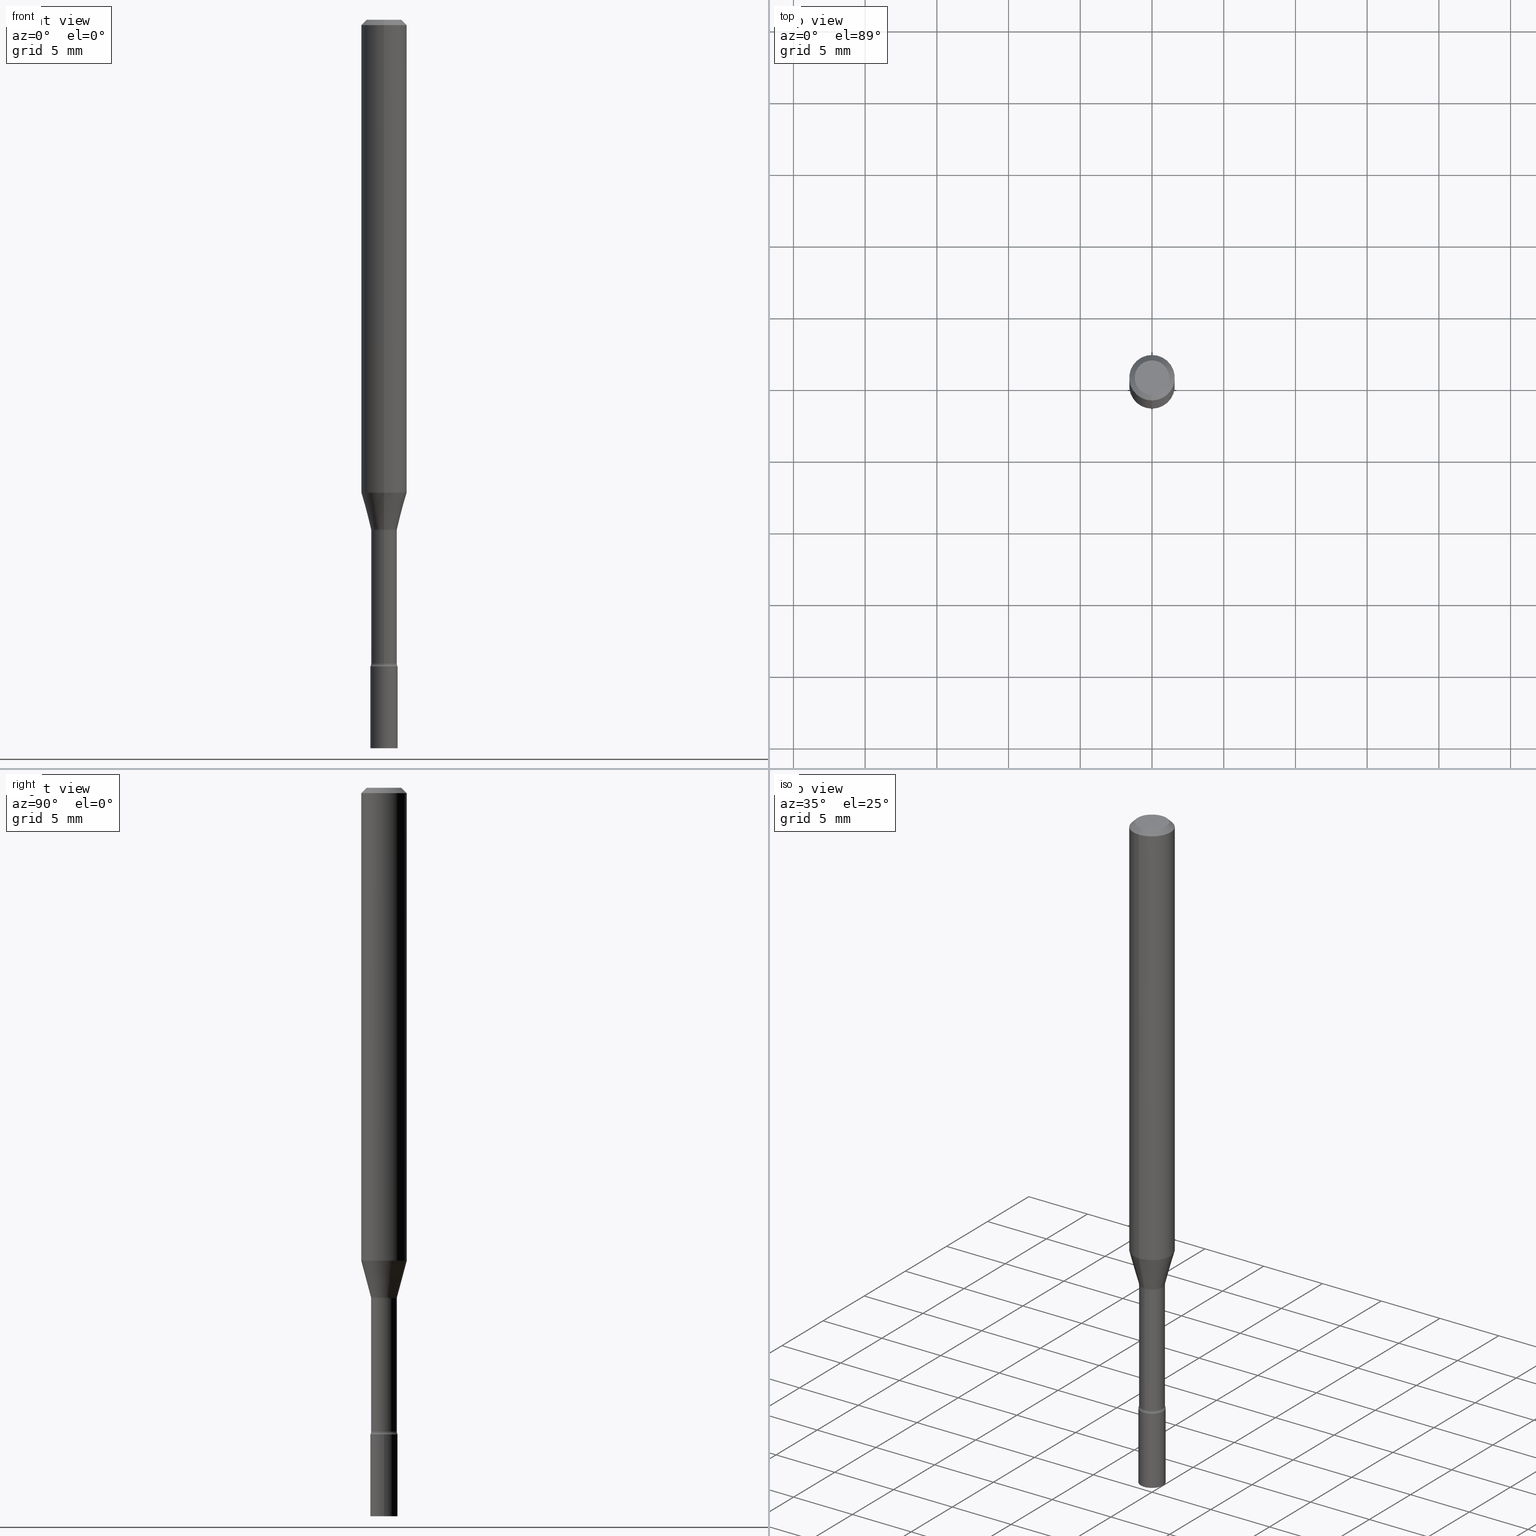
[diagram: canonical four-view strip — front | top / right | iso, engineering-drawing reading convention]
A machine part, canonical four-view strip (front | top / right | iso — engineering-drawing reading convention). The complete STEP part file that produces these views, byte-faithful:
ISO-10303-21;
HEADER;
FILE_DESCRIPTION (( 'STEP AP203' ),
    '1' );
FILE_NAME ('09871.STEP',
    '2024-03-09T02:35:27',
    ( '' ),
    ( '' ),
    'SwSTEP 2.0',
    'SolidWorks 2023',
    '' );
FILE_SCHEMA (( 'CONFIG_CONTROL_DESIGN' ));
ENDSEC;

DATA;
#1 = VERTEX_POINT ( 'NONE', #246 ) ;
#2 = FACE_OUTER_BOUND ( 'NONE', #465, .T. ) ;
#3 = CARTESIAN_POINT ( 'NONE',  ( 3.418998576260185238E-29, -4.881403891401201649E-15, -1.398092501787273179 ) ) ;
#4 = DIRECTION ( 'NONE',  ( -2.445473795109734051E-29, 3.491474194419170735E-15, 1.000000000000000000 ) ) ;
#5 = CONICAL_SURFACE ( 'NONE', #257, 0.03576111260566397498, 0.2617993877991499629 ) ;
#6 = CARTESIAN_POINT ( 'NONE',  ( 2.540979878465689744E-16, 0.03576111260565909000, -1.398092501787273179 ) ) ;
#7 = ORIENTED_EDGE ( 'NONE', *, *, #299, .F. ) ;
#8 = DIRECTION ( 'NONE',  ( 7.105427357601001859E-15, 1.000000000000000000, 0.000000000000000000 ) ) ;
#9 = ADVANCED_FACE ( 'NONE', ( #407 ), #403, .T. ) ;
#10 = CARTESIAN_POINT ( 'NONE',  ( -2.618611004131915157E-16, -0.03750000000000618811, -1.775000000000000133 ) ) ;
#11 = ORIENTED_EDGE ( 'NONE', *, *, #380, .F. ) ;
#12 = LENGTH_MEASURE_WITH_UNIT ( LENGTH_MEASURE( 0.02539999999999999897 ), #45 );
#13 = CONICAL_SURFACE ( 'NONE', #248, 0.03576111260566397498, 0.2617993877991499629 ) ;
#14 = CIRCLE ( 'NONE', #72, 0.06250000000000000000 ) ;
#15 = CARTESIAN_POINT ( 'NONE',  ( 4.340707130978617347E-29, -6.197379376446583794E-15, -1.775000000000000133 ) ) ;
#16 = CARTESIAN_POINT ( 'NONE',  ( -2.497185146378532009E-16, -0.03576111260566885303, -1.398092501787273179 ) ) ;
#17 = ORIENTED_EDGE ( 'NONE', *, *, #236, .F. ) ;
#18 = ORIENTED_EDGE ( 'NONE', *, *, #167, .F. ) ;
#19 = EDGE_LOOP ( 'NONE', ( #264, #256, #379, #330 ) ) ;
#20 = APPROVAL_STATUS ( 'not_yet_approved' ) ;
#21 = CIRCLE ( 'NONE', #119, 0.01499999999999997689 ) ;
#22 = CONICAL_SURFACE ( 'NONE', #344, 0.06250000000000000000, 0.7853981633974483900 ) ;
#23 = AXIS2_PLACEMENT_3D ( 'NONE', #215, #105, #326 ) ;
#24 = VERTEX_POINT ( 'NONE', #200 ) ;
#25 = DIRECTION ( 'NONE',  ( -2.445473795109733770E-29, 3.491474194419170341E-15, 1.000000000000000000 ) ) ;
#26 = ORIENTED_EDGE ( 'NONE', *, *, #336, .T. ) ;
#27 = CALENDAR_DATE ( 2024, 8, 3 ) ;
#28 = PLANE ( 'NONE',  #165 ) ;
#29 = ORIENTED_EDGE ( 'NONE', *, *, #77, .T. ) ;
#30 = CYLINDRICAL_SURFACE ( 'NONE', #141, 0.03525000000000003825 ) ;
#31 = DIRECTION ( 'NONE',  ( -6.982962677686266711E-15, -1.000000000000000000, 3.491474194419170735E-15 ) ) ;
#32 = CARTESIAN_POINT ( 'NONE',  ( 3.428485609800787057E-29, -4.894968807958481776E-15, -1.401974787463811101 ) ) ;
#33 = VECTOR ( 'NONE', #402, 39.37007874015748143 ) ;
#34 = VERTEX_POINT ( 'NONE', #287 ) ;
#35 = AXIS2_PLACEMENT_3D ( 'NONE', #55, #210, #367 ) ;
#36 = CARTESIAN_POINT ( 'NONE',  ( -0.03749999999999999861, 2.664535259100375598E-16, -1.844600658845589458E-30 ) ) ;
#37 = DATE_AND_TIME ( #394, #223 ) ;
#38 = CC_DESIGN_PERSON_AND_ORGANIZATION_ASSIGNMENT ( #487, #130, ( #166 ) ) ;
#39 = AXIS2_PLACEMENT_3D ( 'NONE', #472, #242, #142 ) ;
#40 = CIRCLE ( 'NONE', #391, 0.03749999999999999861 ) ;
#41 = PLANE ( 'NONE',  #222 ) ;
#42 = DESIGN_CONTEXT ( 'detailed design', #328, 'design' ) ;
#43 = EDGE_CURVE ( 'NONE', #1, #64, #154, .T. ) ;
#44 = CC_DESIGN_PERSON_AND_ORGANIZATION_ASSIGNMENT ( #80, #263, ( #346 ) ) ;
#45 =( LENGTH_UNIT ( ) NAMED_UNIT ( * ) SI_UNIT ( $, .METRE. ) );
#46 = CARTESIAN_POINT ( 'NONE',  ( 3.428485609800787057E-29, -4.894968807958481776E-15, -1.401974787463811101 ) ) ;
#47 = DIRECTION ( 'NONE',  ( -2.445473795109733770E-29, 3.491474194419170341E-15, 1.000000000000000000 ) ) ;
#48 = AXIS2_PLACEMENT_3D ( 'NONE', #175, #504, #301 ) ;
#49 = FACE_OUTER_BOUND ( 'NONE', #171, .T. ) ;
#50 = CLOSED_SHELL ( 'NONE', ( #440, #497, #170, #284, #150, #266, #251, #9, #156, #267, #227, #396, #258, #280 ) ) ;
#51 = DIRECTION ( 'NONE',  ( -6.982962677686265922E-15, -1.000000000000000000, 4.370956789862821150E-15 ) ) ;
#52 = ORIENTED_EDGE ( 'NONE', *, *, #167, .T. ) ;
#53 = DIRECTION ( 'NONE',  ( -6.982962677686265922E-15, -1.000000000000000000, 0.000000000000000000 ) ) ;
#54 = DIRECTION ( 'NONE',  ( 1.839019923739597949E-15, 0.2588190451025246253, 0.9659258262890670910 ) ) ;
#55 = CARTESIAN_POINT ( 'NONE',  ( 4.321383671524591751E-29, -6.169790597593636121E-15, -1.767098259685360606 ) ) ;
#56 = DIRECTION ( 'NONE',  ( -6.982962677686266711E-15, -1.000000000000000000, 0.000000000000000000 ) ) ;
#57 = CALENDAR_DATE ( 2024, 8, 3 ) ;
#58 = TOROIDAL_SURFACE ( 'NONE', #35, 0.05025000000000006545, 0.01499999999999997689 ) ;
#59 = ORIENTED_EDGE ( 'NONE', *, *, #355, .T. ) ;
#60 = ORIENTED_EDGE ( 'NONE', *, *, #113, .T. ) ;
#61 =( NAMED_UNIT ( * ) PLANE_ANGLE_UNIT ( ) SI_UNIT ( $, .RADIAN. ) );
#62 = ORIENTED_EDGE ( 'NONE', *, *, #450, .T. ) ;
#63 = VECTOR ( 'NONE', #108, 39.37007874015748143 ) ;
#64 = VERTEX_POINT ( 'NONE', #317 ) ;
#65 = PERSON_AND_ORGANIZATION_ROLE ( 'creator' ) ;
#66 = EDGE_CURVE ( 'NONE', #324, #515, #518, .T. ) ;
#67 = DIRECTION ( 'NONE',  ( -6.982962677686266711E-15, -1.000000000000000000, 0.000000000000000000 ) ) ;
#68 = VERTEX_POINT ( 'NONE', #480 ) ;
#69 = ADVANCED_BREP_SHAPE_REPRESENTATION ( '09871', ( #412, #419, #446 ), #489 ) ;
#70 = DIRECTION ( 'NONE',  ( -2.445473795109733770E-29, 3.491474194419170341E-15, 1.000000000000000000 ) ) ;
#71 = AXIS2_PLACEMENT_3D ( 'NONE', #441, #193, #183 ) ;
#72 = AXIS2_PLACEMENT_3D ( 'NONE', #452, #135, #319 ) ;
#73 = CALENDAR_DATE ( 2024, 8, 3 ) ;
#74 = EDGE_CURVE ( 'NONE', #1, #68, #362, .T. ) ;
#75 = FACE_OUTER_BOUND ( 'NONE', #493, .T. ) ;
#76 = CARTESIAN_POINT ( 'NONE',  ( 4.340715986319777674E-29, -6.197366695094028046E-15, -1.775000000000000133 ) ) ;
#77 = EDGE_CURVE ( 'NONE', #34, #324, #252, .T. ) ;
#78 = AXIS2_PLACEMENT_3D ( 'NONE', #225, #25, #296 ) ;
#79 = DIRECTION ( 'NONE',  ( -2.445473795109733770E-29, 3.491474194419170341E-15, 1.000000000000000000 ) ) ;
#80 = PERSON_AND_ORGANIZATION ( #318, #371 ) ;
#81 = APPROVAL_DATE_TIME ( #282, #311 ) ;
#82 = ORIENTED_EDGE ( 'NONE', *, *, #295, .F. ) ;
#83 = CIRCLE ( 'NONE', #78, 0.03576111260566397498 ) ;
#84 = DIRECTION ( 'NONE',  ( -2.445473795109733770E-29, 3.491474194419170341E-15, 1.000000000000000000 ) ) ;
#85 = LOCAL_TIME ( 21, 35, 27.00000000000000000, #415 ) ;
#86 = DIRECTION ( 'NONE',  ( -6.982962677686265922E-15, -1.000000000000000000, 3.491474194419170341E-15 ) ) ;
#87 = ORIENTED_EDGE ( 'NONE', *, *, #355, .F. ) ;
#88 = DIRECTION ( 'NONE',  ( 1.000000000000000000, 0.000000000000000000, 0.000000000000000000 ) ) ;
#89 = FACE_OUTER_BOUND ( 'NONE', #185, .T. ) ;
#90 = DIRECTION ( 'NONE',  ( 1.000000000000000000, -6.982962677686265922E-15, 4.876176775795935793E-29 ) ) ;
#91 = PERSON_AND_ORGANIZATION_ROLE ( 'design_owner' ) ;
#92 = ADVANCED_FACE ( 'NONE', ( #125 ), #158, .T. ) ;
#93 = VERTEX_POINT ( 'NONE', #208 ) ;
#94 = VECTOR ( 'NONE', #220, 39.37007874015748143 ) ;
#95 = VECTOR ( 'NONE', #4, 39.37007874015748143 ) ;
#96 = CLOSED_SHELL ( 'NONE', ( #354, #92, #209, #349 ) ) ;
#97 = ORIENTED_EDGE ( 'NONE', *, *, #191, .F. ) ;
#98 = APPLICATION_PROTOCOL_DEFINITION ( 'international standard', 'config_control_design', 1994, #328 ) ;
#99 = EDGE_LOOP ( 'NONE', ( #206, #418, #460, #510 ) ) ;
#100 = EDGE_CURVE ( 'NONE', #501, #363, #353, .T. ) ;
#101 = LINE ( 'NONE', #126, #63 ) ;
#102 = ORIENTED_EDGE ( 'NONE', *, *, #155, .T. ) ;
#103 = AXIS2_PLACEMENT_3D ( 'NONE', #507, #274, #187 ) ;
#104 = CC_DESIGN_APPROVAL ( #311, ( #166 ) ) ;
#105 = DIRECTION ( 'NONE',  ( -2.445473795109733770E-29, 3.491474194419170341E-15, 1.000000000000000000 ) ) ;
#106 = CYLINDRICAL_SURFACE ( 'NONE', #133, 0.06250000000000000000 ) ;
#107 = ORIENTED_EDGE ( 'NONE', *, *, #136, .T. ) ;
#108 = DIRECTION ( 'NONE',  ( -2.445473795109734051E-29, 3.491474194419170735E-15, 1.000000000000000000 ) ) ;
#109 = CARTESIAN_POINT ( 'NONE',  ( -0.03749999999999999861, -6.323717501156401251E-15, -2.000000000000000000 ) ) ;
#110 = ORIENTED_EDGE ( 'NONE', *, *, #454, .T. ) ;
#111 = CARTESIAN_POINT ( 'NONE',  ( 4.321383671524591751E-29, -6.169790597593636121E-15, -1.767098259685360606 ) ) ;
#112 = PERSON_AND_ORGANIZATION ( #318, #371 ) ;
#113 = EDGE_CURVE ( 'NONE', #1, #414, #201, .T. ) ;
#114 = AXIS2_PLACEMENT_3D ( 'NONE', #237, #433, #306 ) ;
#115 = PRODUCT_DEFINITION ( 'UNKNOWN', '', #346, #42 ) ;
#116 = APPROVAL ( #343, 'UNSPECIFIED' ) ;
#117 = DATE_TIME_ROLE ( 'classification_date' ) ;
#118 = CALENDAR_DATE ( 2024, 8, 3 ) ;
#119 = AXIS2_PLACEMENT_3D ( 'NONE', #207, #364, #8 ) ;
#120 = LOCAL_TIME ( 21, 35, 27.00000000000000000, #384 ) ;
#121 = CARTESIAN_POINT ( 'NONE',  ( -4.364351673553600657E-16, -0.06250000000000456579, -1.298301615493748118 ) ) ;
#122 = DIRECTION ( 'NONE',  ( -6.982962677686265133E-15, -1.000000000000000000, 3.491474194419169947E-15 ) ) ;
#123 = CARTESIAN_POINT ( 'NONE',  ( 0.000000000000000000, 0.000000000000000000, 0.000000000000000000 ) ) ;
#124 = CARTESIAN_POINT ( 'NONE',  ( 4.340715986319777674E-29, -6.197366695094028046E-15, -1.775000000000000133 ) ) ;
#125 = FACE_OUTER_BOUND ( 'NONE', #428, .T. ) ;
#126 = CARTESIAN_POINT ( 'NONE',  ( 4.440892098500625669E-16, 0.06250000000000000000, -2.182171371511981463E-16 ) ) ;
#127 = VERTEX_POINT ( 'NONE', #109 ) ;
#128 = AXIS2_PLACEMENT_3D ( 'NONE', #124, #84, #53 ) ;
#129 = DIRECTION ( 'NONE',  ( -6.982962677686265133E-15, -1.000000000000000000, 3.491474194419169947E-15 ) ) ;
#130 = PERSON_AND_ORGANIZATION_ROLE ( 'classification_officer' ) ;
#131 = DIRECTION ( 'NONE',  ( -2.445473795109733770E-29, 3.491474194419170341E-15, 1.000000000000000000 ) ) ;
#132 = EDGE_CURVE ( 'NONE', #432, #34, #83, .T. ) ;
#133 = AXIS2_PLACEMENT_3D ( 'NONE', #268, #427, #386 ) ;
#134 = ORIENTED_EDGE ( 'NONE', *, *, #468, .F. ) ;
#135 = DIRECTION ( 'NONE',  ( -2.445473795109733770E-29, 3.491474194419170341E-15, 1.000000000000000000 ) ) ;
#136 = EDGE_CURVE ( 'NONE', #68, #372, #277, .T. ) ;
#137 = ORIENTED_EDGE ( 'NONE', *, *, #198, .F. ) ;
#138 = DIRECTION ( 'NONE',  ( -2.445468806185136597E-29, 3.491481338843145583E-15, 1.000000000000000000 ) ) ;
#139 = DIRECTION ( 'NONE',  ( -2.445468806185136597E-29, 3.491481338843145583E-15, 1.000000000000000000 ) ) ;
#140 = AXIS2_PLACEMENT_3D ( 'NONE', #15, #484, #90 ) ;
#141 = AXIS2_PLACEMENT_3D ( 'NONE', #179, #345, #129 ) ;
#142 = DIRECTION ( 'NONE',  ( 7.105427357601001859E-15, 1.000000000000000000, 0.000000000000000000 ) ) ;
#143 = ORIENTED_EDGE ( 'NONE', *, *, #74, .T. ) ;
#144 = PRODUCT ( '09871', '09871', '', ( #325 ) ) ;
#145 = CYLINDRICAL_SURFACE ( 'NONE', #114, 0.03749999999999999861 ) ;
#146 = ORIENTED_EDGE ( 'NONE', *, *, #161, .F. ) ;
#147 = EDGE_CURVE ( 'NONE', #230, #387, #338, .T. ) ;
#148 = AXIS2_PLACEMENT_3D ( 'NONE', #395, #192, #231 ) ;
#149 = AXIS2_PLACEMENT_3D ( 'NONE', #463, #163, #56 ) ;
#150 = ADVANCED_FACE ( 'NONE', ( #377 ), #106, .T. ) ;
#151 = CARTESIAN_POINT ( 'NONE',  ( 4.340707130978617347E-29, -6.197379376446583794E-15, -1.775000000000000133 ) ) ;
#152 = DIRECTION ( 'NONE',  ( -2.445473795109733770E-29, 3.491474194419170341E-15, 1.000000000000000000 ) ) ;
#153 = CC_DESIGN_SECURITY_CLASSIFICATION ( #166, ( #346 ) ) ;
#154 = CIRCLE ( 'NONE', #233, 0.03525000000000008682 ) ;
#155 = EDGE_CURVE ( 'NONE', #64, #372, #341, .T. ) ;
#156 = ADVANCED_FACE ( 'NONE', ( #269 ), #496, .T. ) ;
#157 = CARTESIAN_POINT ( 'NONE',  ( 0.000000000000000000, 0.000000000000000000, 0.000000000000000000 ) ) ;
#158 = PLANE ( 'NONE',  #140 ) ;
#159 = ORIENTED_EDGE ( 'NONE', *, *, #161, .T. ) ;
#160 = CARTESIAN_POINT ( 'NONE',  ( 7.070904138456723282E-46, -1.009533587315564197E-31, -2.891425028800783795E-17 ) ) ;
#161 = EDGE_CURVE ( 'NONE', #470, #363, #334, .T. ) ;
#162 = DIRECTION ( 'NONE',  ( -2.445473795109734051E-29, 3.491474194419170735E-15, 1.000000000000000000 ) ) ;
#163 = DIRECTION ( 'NONE',  ( -2.445473795109733770E-29, 3.491474194419170341E-15, 1.000000000000000000 ) ) ;
#164 = ORIENTED_EDGE ( 'NONE', *, *, #431, .F. ) ;
#165 = AXIS2_PLACEMENT_3D ( 'NONE', #508, #262, #253 ) ;
#166 = SECURITY_CLASSIFICATION ( '', '', #482 ) ;
#167 = EDGE_CURVE ( 'NONE', #320, #93, #439, .T. ) ;
#168 = CARTESIAN_POINT ( 'NONE',  ( -3.508938745536921420E-16, -0.05025000000000623412, -1.767098259685360384 ) ) ;
#169 = ORIENTED_EDGE ( 'NONE', *, *, #303, .F. ) ;
#170 = ADVANCED_FACE ( 'NONE', ( #511 ), #322, .F. ) ;
#171 = EDGE_LOOP ( 'NONE', ( #7, #52, #59, #335 ) ) ;
#172 = ORIENTED_EDGE ( 'NONE', *, *, #136, .F. ) ;
#173 = CIRCLE ( 'NONE', #259, 0.03749999999999999861 ) ;
#174 = ORIENTED_EDGE ( 'NONE', *, *, #132, .F. ) ;
#175 = CARTESIAN_POINT ( 'NONE',  ( 3.428492604147288661E-29, -4.894958791656197287E-15, -1.401974787463811101 ) ) ;
#176 = EDGE_LOOP ( 'NONE', ( #221, #102, #172, #498 ) ) ;
#177 = ORIENTED_EDGE ( 'NONE', *, *, #454, .F. ) ;
#178 = DATE_AND_TIME ( #27, #120 ) ;
#179 = CARTESIAN_POINT ( 'NONE',  ( 0.000000000000000000, 0.000000000000000000, 0.000000000000000000 ) ) ;
#180 = EDGE_CURVE ( 'NONE', #432, #68, #464, .T. ) ;
#181 = AXIS2_PLACEMENT_3D ( 'NONE', #76, #241, #229 ) ;
#182 = CC_DESIGN_APPROVAL ( #116, ( #346 ) ) ;
#183 = DIRECTION ( 'NONE',  ( -6.982962677686265922E-15, -1.000000000000000000, 4.370956789862821150E-15 ) ) ;
#184 = DIRECTION ( 'NONE',  ( -2.445473795109733770E-29, 3.491474194419170341E-15, 1.000000000000000000 ) ) ;
#185 = EDGE_LOOP ( 'NONE', ( #275, #174, #270, #107 ) ) ;
#186 = PRODUCT_RELATED_PRODUCT_CATEGORY ( 'detail', '', ( #144 ) ) ;
#187 = DIRECTION ( 'NONE',  ( -6.982962677686267499E-15, -1.000000000000000000, 0.000000000000000000 ) ) ;
#188 = DIRECTION ( 'NONE',  ( 6.982962677686265922E-15, 1.000000000000000000, -3.483106191921935554E-15 ) ) ;
#189 = APPROVAL_DATE_TIME ( #234, #116 ) ;
#190 = APPROVAL_STATUS ( 'not_yet_approved' ) ;
#191 = EDGE_CURVE ( 'NONE', #363, #501, #232, .T. ) ;
#192 = DIRECTION ( 'NONE',  ( -2.445473795109733210E-29, 3.491474194419170735E-15, 1.000000000000000000 ) ) ;
#193 = DIRECTION ( 'NONE',  ( -2.445473795109733770E-29, 3.491474194419170341E-15, 1.000000000000000000 ) ) ;
#194 = CIRCLE ( 'NONE', #128, 0.03749999999999999861 ) ;
#195 = CIRCLE ( 'NONE', #23, 0.04749999999999999362 ) ;
#196 = DIMENSIONAL_EXPONENTS ( 1.000000000000000000, 0.000000000000000000, 0.000000000000000000, 0.000000000000000000, 0.000000000000000000, 0.000000000000000000, 0.000000000000000000 ) ;
#197 = DIRECTION ( 'NONE',  ( -2.445473795109733770E-29, 3.491474194419170341E-15, 1.000000000000000000 ) ) ;
#198 = EDGE_CURVE ( 'NONE', #24, #414, #217, .T. ) ;
#199 = DIRECTION ( 'NONE',  ( -6.982962677686265922E-15, -1.000000000000000000, 3.483106191921935554E-15 ) ) ;
#200 = CARTESIAN_POINT ( 'NONE',  ( 2.664535259100808486E-16, 0.03749999999999379524, -1.775000000000000133 ) ) ;
#201 = CIRCLE ( 'NONE', #331, 0.01499999999999997689 ) ;
#202 = CIRCLE ( 'NONE', #149, 0.03524999999999998967 ) ;
#203 = EDGE_CURVE ( 'NONE', #64, #1, #360, .T. ) ;
#204 = DIRECTION ( 'NONE',  ( 2.445473795109733770E-29, -3.491474194419170341E-15, -1.000000000000000000 ) ) ;
#205 = CARTESIAN_POINT ( 'NONE',  ( 0.03749999999999999861, -6.459240476859818795E-15, -1.775000000000000133 ) ) ;
#206 = ORIENTED_EDGE ( 'NONE', *, *, #203, .F. ) ;
#207 = CARTESIAN_POINT ( 'NONE',  ( 3.570477247194939493E-16, 0.05024999999999388983, -1.767098259685361050 ) ) ;
#208 = CARTESIAN_POINT ( 'NONE',  ( -4.364351673553912750E-16, -0.06250000000000005551, -0.01499999999999981209 ) ) ;
#209 = ADVANCED_FACE ( 'NONE', ( #75 ), #145, .T. ) ;
#210 = DIRECTION ( 'NONE',  ( -2.445473795109733770E-29, 3.491474194419170341E-15, 1.000000000000000000 ) ) ;
#211 = ORIENTED_EDGE ( 'NONE', *, *, #155, .F. ) ;
#212 = APPLICATION_PROTOCOL_DEFINITION ( 'international standard', 'config_control_design', 1994, #400 ) ;
#213 = EDGE_CURVE ( 'NONE', #34, #432, #243, .T. ) ;
#214 = CC_DESIGN_DATE_AND_TIME_ASSIGNMENT ( #37, #117, ( #166 ) ) ;
#215 = CARTESIAN_POINT ( 'NONE',  ( 7.070904138456723282E-46, -1.009533587315564197E-31, -2.891425028800783795E-17 ) ) ;
#216 = ORIENTED_EDGE ( 'NONE', *, *, #66, .F. ) ;
#217 = CIRCLE ( 'NONE', #181, 0.03749999999999999861 ) ;
#218 = CC_DESIGN_APPROVAL ( #350, ( #115 ) ) ;
#219 = EDGE_LOOP ( 'NONE', ( #491, #304, #110, #347 ) ) ;
#220 = DIRECTION ( 'NONE',  ( 4.937700262164548042E-15, 0.7071067811865451302, -0.7071067811865499042 ) ) ;
#221 = ORIENTED_EDGE ( 'NONE', *, *, #43, .T. ) ;
#222 = AXIS2_PLACEMENT_3D ( 'NONE', #409, #321, #404 ) ;
#223 = LOCAL_TIME ( 21, 35, 27.00000000000000000, #285 ) ;
#224 = EDGE_LOOP ( 'NONE', ( #305, #456, #327, #216 ) ) ;
#225 = CARTESIAN_POINT ( 'NONE',  ( 3.418998576260185238E-29, -4.881403891401201649E-15, -1.398092501787273179 ) ) ;
#226 = ORIENTED_EDGE ( 'NONE', *, *, #203, .T. ) ;
#227 = ADVANCED_FACE ( 'NONE', ( #514 ), #348, .F. ) ;
#228 = FACE_OUTER_BOUND ( 'NONE', #176, .T. ) ;
#229 = DIRECTION ( 'NONE',  ( -6.982962677686265922E-15, -1.000000000000000000, 0.000000000000000000 ) ) ;
#230 = VERTEX_POINT ( 'NONE', #392 ) ;
#231 = DIRECTION ( 'NONE',  ( -6.982962677686265922E-15, -1.000000000000000000, 3.491474194419170735E-15 ) ) ;
#232 = CIRCLE ( 'NONE', #265, 0.03749999999999999861 ) ;
#233 = AXIS2_PLACEMENT_3D ( 'NONE', #451, #47, #361 ) ;
#234 = DATE_AND_TIME ( #73, #474 ) ;
#235 = DIRECTION ( 'NONE',  ( -2.445468806185136877E-29, 3.491481338843145188E-15, 1.000000000000000000 ) ) ;
#236 = EDGE_CURVE ( 'NONE', #127, #501, #520, .T. ) ;
#237 = CARTESIAN_POINT ( 'NONE',  ( 0.000000000000000000, 0.000000000000000000, 0.000000000000000000 ) ) ;
#238 = DIRECTION ( 'NONE',  ( -2.445473795109733770E-29, 3.491474194419170341E-15, 1.000000000000000000 ) ) ;
#239 = APPROVAL_ROLE ( '' ) ;
#240 = CARTESIAN_POINT ( 'NONE',  ( 2.504663143554355380E-16, 0.03525000000000003825, -1.230744653532758807E-16 ) ) ;
#241 = DIRECTION ( 'NONE',  ( -2.445473795109733770E-29, 3.491474194419170341E-15, 1.000000000000000000 ) ) ;
#242 = DIRECTION ( 'NONE',  ( 1.000000000000000000, -7.105427357601001070E-15, 4.926315421048122705E-29 ) ) ;
#243 = CIRCLE ( 'NONE', #405, 0.03576111260566397498 ) ;
#244 = UNCERTAINTY_MEASURE_WITH_UNIT (LENGTH_MEASURE( 1.000000000000000082E-05 ), #502, 'distance_accuracy_value', 'NONE');
#245 = DIRECTION ( 'NONE',  ( -6.982962677686265133E-15, -1.000000000000000000, 0.000000000000000000 ) ) ;
#246 = CARTESIAN_POINT ( 'NONE',  ( -2.461494343883982794E-16, -0.03525000000000625550, -1.767098259685360384 ) ) ;
#247 = CARTESIAN_POINT ( 'NONE',  ( 3.418998576260185238E-29, -4.881403891401201649E-15, -1.398092501787273179 ) ) ;
#248 = AXIS2_PLACEMENT_3D ( 'NONE', #247, #79, #245 ) ;
#249 = TOROIDAL_SURFACE ( 'NONE', #302, 0.05024999999999998912, 0.01500000000000001853 ) ;
#250 = ORIENTED_EDGE ( 'NONE', *, *, #191, .T. ) ;
#251 = ADVANCED_FACE ( 'NONE', ( #316 ), #5, .T. ) ;
#252 = LINE ( 'NONE', #6, #308 ) ;
#253 = DIRECTION ( 'NONE',  ( -1.000000000000000000, 6.982962677686265922E-15, -4.876176775795935793E-29 ) ) ;
#254 = DIRECTION ( 'NONE',  ( -2.445473795109734051E-29, 3.491474194419170735E-15, 1.000000000000000000 ) ) ;
#255 = CYLINDRICAL_SURFACE ( 'NONE', #438, 0.03749999999999999861 ) ;
#256 = ORIENTED_EDGE ( 'NONE', *, *, #307, .T. ) ;
#257 = AXIS2_PLACEMENT_3D ( 'NONE', #3, #152, #443 ) ;
#258 = ADVANCED_FACE ( 'NONE', ( #2 ), #312, .T. ) ;
#259 = AXIS2_PLACEMENT_3D ( 'NONE', #448, #138, #323 ) ;
#260 = CARTESIAN_POINT ( 'NONE',  ( 0.000000000000000000, 0.000000000000000000, 0.000000000000000000 ) ) ;
#261 = ORIENTED_EDGE ( 'NONE', *, *, #290, .F. ) ;
#262 = DIRECTION ( 'NONE',  ( 2.438088387897960049E-29, -3.491481338843145188E-15, -1.000000000000000000 ) ) ;
#263 = PERSON_AND_ORGANIZATION_ROLE ( 'creator' ) ;
#264 = ORIENTED_EDGE ( 'NONE', *, *, #213, .F. ) ;
#265 = AXIS2_PLACEMENT_3D ( 'NONE', #151, #139, #388 ) ;
#266 = ADVANCED_FACE ( 'NONE', ( #281 ), #13, .T. ) ;
#267 = ADVANCED_FACE ( 'NONE', ( #401 ), #41, .F. ) ;
#268 = CARTESIAN_POINT ( 'NONE',  ( 0.000000000000000000, 0.000000000000000000, 0.000000000000000000 ) ) ;
#269 = FACE_OUTER_BOUND ( 'NONE', #445, .T. ) ;
#270 = ORIENTED_EDGE ( 'NONE', *, *, #180, .T. ) ;
#271 = CARTESIAN_POINT ( 'NONE',  ( 0.03749999999999999861, -7.244823778099525378E-15, -2.000000000000000000 ) ) ;
#272 = DIRECTION ( 'NONE',  ( -6.982962677686265922E-15, -1.000000000000000000, 3.491474194419170341E-15 ) ) ;
#273 = ORIENTED_EDGE ( 'NONE', *, *, #357, .F. ) ;
#274 = DIRECTION ( 'NONE',  ( -1.000000000000000000, 6.982962677686265922E-15, -4.883557194083112340E-29 ) ) ;
#275 = ORIENTED_EDGE ( 'NONE', *, *, #307, .F. ) ;
#276 = APPROVAL_ROLE ( '' ) ;
#277 = CIRCLE ( 'NONE', #48, 0.03524999999999998967 ) ;
#278 = CARTESIAN_POINT ( 'NONE',  ( 3.418998576260185238E-29, -4.881403891401201649E-15, -1.398092501787273179 ) ) ;
#279 = AXIS2_PLACEMENT_3D ( 'NONE', #32, #184, #512 ) ;
#280 = ADVANCED_FACE ( 'NONE', ( #89 ), #249, .F. ) ;
#281 = FACE_OUTER_BOUND ( 'NONE', #469, .T. ) ;
#282 = DATE_AND_TIME ( #118, #417 ) ;
#283 = CARTESIAN_POINT ( 'NONE',  ( -0.03749999999999999861, -6.323717501156401251E-15, -1.775000000000000133 ) ) ;
#284 = ADVANCED_FACE ( 'NONE', ( #49 ), #22, .T. ) ;
#285 = COORDINATED_UNIVERSAL_TIME_OFFSET ( 5, 0, .BEHIND. ) ;
#286 = AXIS2_PLACEMENT_3D ( 'NONE', #447, #410, #51 ) ;
#287 = CARTESIAN_POINT ( 'NONE',  ( 3.490935988483317697E-16, 0.03576111260565909000, -1.398092501787273179 ) ) ;
#288 = DIRECTION ( 'NONE',  ( -1.807323732225328167E-15, -0.2588190451025179084, 0.9659258262890690894 ) ) ;
#289 = EDGE_LOOP ( 'NONE', ( #11, #134 ) ) ;
#290 = EDGE_CURVE ( 'NONE', #414, #24, #194, .T. ) ;
#291 = DIRECTION ( 'NONE',  ( -2.445473795109733770E-29, 3.491474194419170341E-15, 1.000000000000000000 ) ) ;
#292 = DIRECTION ( 'NONE',  ( -2.445468806185136597E-29, 3.491481338843145583E-15, 1.000000000000000000 ) ) ;
#293 = PERSON_AND_ORGANIZATION ( #318, #371 ) ;
#294 = AXIS2_PLACEMENT_3D ( 'NONE', #160, #238, #31 ) ;
#295 = EDGE_CURVE ( 'NONE', #64, #24, #21, .T. ) ;
#296 = DIRECTION ( 'NONE',  ( -6.982962677686265133E-15, -1.000000000000000000, 0.000000000000000000 ) ) ;
#297 = CARTESIAN_POINT ( 'NONE',  ( -2.497185146378532009E-16, -0.03576111260566885303, -1.398092501787273179 ) ) ;
#298 = ORIENTED_EDGE ( 'NONE', *, *, #431, .T. ) ;
#299 = EDGE_CURVE ( 'NONE', #320, #230, #397, .T. ) ;
#300 = FACE_OUTER_BOUND ( 'NONE', #505, .T. ) ;
#301 = DIRECTION ( 'NONE',  ( -6.982962677686266711E-15, -1.000000000000000000, 0.000000000000000000 ) ) ;
#302 = AXIS2_PLACEMENT_3D ( 'NONE', #46, #197, #359 ) ;
#303 = EDGE_CURVE ( 'NONE', #515, #324, #423, .T. ) ;
#304 = ORIENTED_EDGE ( 'NONE', *, *, #66, .T. ) ;
#305 = ORIENTED_EDGE ( 'NONE', *, *, #77, .F. ) ;
#306 = DIRECTION ( 'NONE',  ( 1.000000000000000000, -6.982962677686266711E-15, 4.876176775795935793E-29 ) ) ;
#307 = EDGE_CURVE ( 'NONE', #34, #372, #313, .T. ) ;
#308 = VECTOR ( 'NONE', #54, 39.37007874015748854 ) ;
#309 = DIRECTION ( 'NONE',  ( -4.851104656540964275E-15, -0.7071067811865500152, -0.7071067811865450192 ) ) ;
#310 = CARTESIAN_POINT ( 'NONE',  ( 4.321392487444564369E-29, -6.169777972694461128E-15, -1.767098259685360384 ) ) ;
#311 = APPROVAL ( #190, 'UNSPECIFIED' ) ;
#312 = CYLINDRICAL_SURFACE ( 'NONE', #473, 0.03525000000000003825 ) ;
#313 = CIRCLE ( 'NONE', #39, 0.01500000000000001853 ) ;
#314 = TOROIDAL_SURFACE ( 'NONE', #279, 0.05024999999999998912, 0.01500000000000001853 ) ;
#315 = CARTESIAN_POINT ( 'NONE',  ( 0.03749999999999999861, -2.618611004132350016E-16, 1.828566290923475922E-30 ) ) ;
#316 = FACE_OUTER_BOUND ( 'NONE', #224, .T. ) ;
#317 = CARTESIAN_POINT ( 'NONE',  ( 2.584599201327800595E-16, 0.03524999999999392508, -1.767098259685360384 ) ) ;
#318 = PERSON ( 'UNSPECIFIED', 'UNSPECIFIED', 'UNSPECIFIED', ('UNSPECIFIED'), ('UNSPECIFIED'), ('UNSPECIFIED') ) ;
#319 = DIRECTION ( 'NONE',  ( -6.982962677686265922E-15, -1.000000000000000000, 3.483106191921935554E-15 ) ) ;
#320 = VERTEX_POINT ( 'NONE', #337 ) ;
#321 = DIRECTION ( 'NONE',  ( 2.445473795109733210E-29, -3.491474194419170735E-15, -1.000000000000000000 ) ) ;
#322 = TOROIDAL_SURFACE ( 'NONE', #390, 0.05025000000000006545, 0.01499999999999997689 ) ;
#323 = DIRECTION ( 'NONE',  ( 1.000000000000000000, -6.982962677686268288E-15, 0.000000000000000000 ) ) ;
#324 = VERTEX_POINT ( 'NONE', #467 ) ;
#325 = MECHANICAL_CONTEXT ( 'NONE', #400, 'mechanical' ) ;
#326 = DIRECTION ( 'NONE',  ( -6.982962677686266711E-15, -1.000000000000000000, 3.491474194419170735E-15 ) ) ;
#327 = ORIENTED_EDGE ( 'NONE', *, *, #357, .T. ) ;
#328 = APPLICATION_CONTEXT ( 'configuration controlled 3d designs of mechanical parts and assemblies' ) ;
#329 = DIRECTION ( 'NONE',  ( -1.000000000000000000, 6.982962677686265922E-15, -4.883557194083112340E-29 ) ) ;
#330 = ORIENTED_EDGE ( 'NONE', *, *, #180, .F. ) ;
#331 = AXIS2_PLACEMENT_3D ( 'NONE', #168, #329, #461 ) ;
#332 = DIRECTION ( 'NONE',  ( 0.000000000000000000, 0.000000000000000000, 1.000000000000000000 ) ) ;
#333 = APPROVAL_PERSON_ORGANIZATION ( #112, #116, #276 ) ;
#334 = LINE ( 'NONE', #315, #33 ) ;
#335 = ORIENTED_EDGE ( 'NONE', *, *, #147, .F. ) ;
#336 = EDGE_CURVE ( 'NONE', #324, #387, #101, .T. ) ;
#337 = CARTESIAN_POINT ( 'NONE',  ( -3.773273898774340269E-16, -0.04749999999999999362, 1.369307739469027606E-16 ) ) ;
#338 = LINE ( 'NONE', #420, #94 ) ;
#339 = DIRECTION ( 'NONE',  ( -2.445468806185136597E-29, 3.491481338843145583E-15, 1.000000000000000000 ) ) ;
#340 = DIRECTION ( 'NONE',  ( 1.000000000000000000, -6.982962677686266711E-15, 4.876176775795935793E-29 ) ) ;
#341 = LINE ( 'NONE', #240, #457 ) ;
#342 = EDGE_LOOP ( 'NONE', ( #298, #373 ) ) ;
#343 = APPROVAL_STATUS ( 'not_yet_approved' ) ;
#344 = AXIS2_PLACEMENT_3D ( 'NONE', #486, #204, #481 ) ;
#345 = DIRECTION ( 'NONE',  ( -2.445473795109733770E-29, 3.491474194419170341E-15, 1.000000000000000000 ) ) ;
#346 = PRODUCT_DEFINITION_FORMATION_WITH_SPECIFIED_SOURCE ( 'ANY', '', #144, .NOT_KNOWN. ) ;
#347 = ORIENTED_EDGE ( 'NONE', *, *, #450, .F. ) ;
#348 = PLANE ( 'NONE',  #148 ) ;
#349 = ADVANCED_FACE ( 'NONE', ( #490 ), #28, .T. ) ;
#350 = APPROVAL ( #20, 'UNSPECIFIED' ) ;
#351 = COORDINATED_UNIVERSAL_TIME_OFFSET ( 5, 0, .BEHIND. ) ;
#352 = APPROVAL_DATE_TIME ( #494, #350 ) ;
#353 = CIRCLE ( 'NONE', #437, 0.03749999999999999861 ) ;
#354 = ADVANCED_FACE ( 'NONE', ( #492 ), #255, .T. ) ;
#355 = EDGE_CURVE ( 'NONE', #93, #387, #14, .T. ) ;
#356 = ORIENTED_EDGE ( 'NONE', *, *, #426, .F. ) ;
#357 = EDGE_CURVE ( 'NONE', #432, #515, #503, .T. ) ;
#358 = CC_DESIGN_PERSON_AND_ORGANIZATION_ASSIGNMENT ( #382, #477, ( #346 ) ) ;
#359 = DIRECTION ( 'NONE',  ( -6.982962677686265922E-15, -1.000000000000000000, 3.491474194419170341E-15 ) ) ;
#360 = CIRCLE ( 'NONE', #442, 0.03525000000000008682 ) ;
#361 = DIRECTION ( 'NONE',  ( -6.982962677686266711E-15, -1.000000000000000000, 0.000000000000000000 ) ) ;
#362 = LINE ( 'NONE', #416, #488 ) ;
#363 = VERTEX_POINT ( 'NONE', #205 ) ;
#364 = DIRECTION ( 'NONE',  ( 1.000000000000000000, -7.105427357601001070E-15, 4.926315421048122705E-29 ) ) ;
#365 = LINE ( 'NONE', #406, #95 ) ;
#366 = CARTESIAN_POINT ( 'NONE',  ( 4.340707130978617347E-29, -6.197379376446583794E-15, -1.775000000000000133 ) ) ;
#367 = DIRECTION ( 'NONE',  ( -6.982962677686265922E-15, -1.000000000000000000, 3.491474194419170341E-15 ) ) ;
#368 = ORIENTED_EDGE ( 'NONE', *, *, #132, .T. ) ;
#369 = AXIS2_PLACEMENT_3D ( 'NONE', #478, #483, #188 ) ;
#370 = DIRECTION ( 'NONE',  ( -2.445468806185136597E-29, 3.491481338843145583E-15, 1.000000000000000000 ) ) ;
#371 = ORGANIZATION ( 'UNSPECIFIED', 'UNSPECIFIED', '' ) ;
#372 = VERTEX_POINT ( 'NONE', #485 ) ;
#373 = ORIENTED_EDGE ( 'NONE', *, *, #299, .T. ) ;
#374 =( NAMED_UNIT ( * ) SI_UNIT ( $, .STERADIAN. ) SOLID_ANGLE_UNIT ( ) );
#375 = EDGE_LOOP ( 'NONE', ( #453, #383, #97, #146 ) ) ;
#376 = PERSON_AND_ORGANIZATION ( #318, #371 ) ;
#377 = FACE_OUTER_BOUND ( 'NONE', #424, .T. ) ;
#378 = VECTOR ( 'NONE', #309, 39.37007874015748143 ) ;
#379 = ORIENTED_EDGE ( 'NONE', *, *, #426, .T. ) ;
#380 = EDGE_CURVE ( 'NONE', #470, #127, #173, .T. ) ;
#381 = CARTESIAN_POINT ( 'NONE',  ( 3.668210692664607872E-31, -5.237211291628766482E-17, -0.01500000000000003067 ) ) ;
#382 = PERSON_AND_ORGANIZATION ( #318, #371 ) ;
#383 = ORIENTED_EDGE ( 'NONE', *, *, #236, .T. ) ;
#384 = COORDINATED_UNIVERSAL_TIME_OFFSET ( 5, 0, .BEHIND. ) ;
#385 = SHAPE_DEFINITION_REPRESENTATION ( #455, #69 ) ;
#386 = DIRECTION ( 'NONE',  ( -6.982962677686265922E-15, -1.000000000000000000, 3.491474194419170341E-15 ) ) ;
#387 = VERTEX_POINT ( 'NONE', #411 ) ;
#388 = DIRECTION ( 'NONE',  ( 1.000000000000000000, -6.982962677686268288E-15, 0.000000000000000000 ) ) ;
#389 = ORIENTED_EDGE ( 'NONE', *, *, #100, .F. ) ;
#390 = AXIS2_PLACEMENT_3D ( 'NONE', #111, #516, #272 ) ;
#391 = AXIS2_PLACEMENT_3D ( 'NONE', #393, #339, #506 ) ;
#392 = CARTESIAN_POINT ( 'NONE',  ( 3.840629472727447874E-16, 0.04749999999999999362, -1.947592745229184119E-16 ) ) ;
#393 = CARTESIAN_POINT ( 'NONE',  ( 4.890937612370273194E-29, -6.982962677686291165E-15, -2.000000000000000000 ) ) ;
#394 = CALENDAR_DATE ( 2024, 8, 3 ) ;
#395 = CARTESIAN_POINT ( 'NONE',  ( 2.618611004132783890E-16, 0.03749999999999380218, -1.775000000000000133 ) ) ;
#396 = ADVANCED_FACE ( 'NONE', ( #300 ), #58, .F. ) ;
#397 = CIRCLE ( 'NONE', #294, 0.04749999999999999362 ) ;
#398 = CARTESIAN_POINT ( 'NONE',  ( -4.287811248607203282E-16, -0.06250000000000005551, -0.01499999999999981209 ) ) ;
#399 = AXIS2_PLACEMENT_3D ( 'NONE', #381, #434, #199 ) ;
#400 = APPLICATION_CONTEXT ( 'configuration controlled 3d designs of mechanical parts and assemblies' ) ;
#401 = FACE_OUTER_BOUND ( 'NONE', #342, .T. ) ;
#402 = DIRECTION ( 'NONE',  ( -2.445468806185136877E-29, 3.491481338843145188E-15, 1.000000000000000000 ) ) ;
#403 = CYLINDRICAL_SURFACE ( 'NONE', #458, 0.06250000000000000000 ) ;
#404 = DIRECTION ( 'NONE',  ( 6.982962677686265922E-15, 1.000000000000000000, -3.491474194419170735E-15 ) ) ;
#405 = AXIS2_PLACEMENT_3D ( 'NONE', #278, #70, #476 ) ;
#406 = CARTESIAN_POINT ( 'NONE',  ( -4.364351673553916201E-16, -0.06250000000000000000, 2.182171371511981463E-16 ) ) ;
#407 = FACE_OUTER_BOUND ( 'NONE', #219, .T. ) ;
#408 = ORIENTED_EDGE ( 'NONE', *, *, #290, .T. ) ;
#409 = CARTESIAN_POINT ( 'NONE',  ( 3.316907271900976096E-16, 0.04749999999999999362, -1.803021493789144991E-16 ) ) ;
#410 = DIRECTION ( 'NONE',  ( -2.445473795109733770E-29, 3.491474194419170341E-15, 1.000000000000000000 ) ) ;
#411 = CARTESIAN_POINT ( 'NONE',  ( 4.440892098500945650E-16, 0.06249999999999995143, -0.01500000000000024751 ) ) ;
#412 = MANIFOLD_SOLID_BREP ( 'Body-Move/Copy2[1]', #96 ) ;
#413 = DIRECTION ( 'NONE',  ( 1.000000000000000000, -6.982962677686268288E-15, 0.000000000000000000 ) ) ;
#414 = VERTEX_POINT ( 'NONE', #10 ) ;
#415 = COORDINATED_UNIVERSAL_TIME_OFFSET ( 5, 0, .BEHIND. ) ;
#416 = CARTESIAN_POINT ( 'NONE',  ( -2.461494343884411244E-16, -0.03525000000000003825, 1.230744653532758807E-16 ) ) ;
#417 = LOCAL_TIME ( 21, 35, 27.00000000000000000, #351 ) ;
#418 = ORIENTED_EDGE ( 'NONE', *, *, #295, .T. ) ;
#419 = MANIFOLD_SOLID_BREP ( 'Body-Move/Copy2[2]', #50 ) ;
#420 = CARTESIAN_POINT ( 'NONE',  ( 4.364351673553919652E-16, 0.06249999999999995143, -0.01500000000000024751 ) ) ;
#421 = ORIENTED_EDGE ( 'NONE', *, *, #303, .T. ) ;
#422 = FACE_OUTER_BOUND ( 'NONE', #19, .T. ) ;
#423 = CIRCLE ( 'NONE', #71, 0.06250000000000000000 ) ;
#424 = EDGE_LOOP ( 'NONE', ( #421, #26, #87, #177 ) ) ;
#425 = APPROVAL_PERSON_ORGANIZATION ( #517, #311, #239 ) ;
#426 = EDGE_CURVE ( 'NONE', #372, #68, #202, .T. ) ;
#427 = DIRECTION ( 'NONE',  ( -2.445473795109733770E-29, 3.491474194419170341E-15, 1.000000000000000000 ) ) ;
#428 = EDGE_LOOP ( 'NONE', ( #250, #449 ) ) ;
#429 = DIRECTION ( 'NONE',  ( -2.445473795109733770E-29, 3.491474194419170341E-15, 1.000000000000000000 ) ) ;
#430 = CARTESIAN_POINT ( 'NONE',  ( 0.000000000000000000, 0.000000000000000000, 0.000000000000000000 ) ) ;
#431 = EDGE_CURVE ( 'NONE', #230, #320, #195, .T. ) ;
#432 = VERTEX_POINT ( 'NONE', #297 ) ;
#433 = DIRECTION ( 'NONE',  ( -2.445468806185136597E-29, 3.491481338843145583E-15, 1.000000000000000000 ) ) ;
#434 = DIRECTION ( 'NONE',  ( -2.445473795109733770E-29, 3.491474194419170341E-15, 1.000000000000000000 ) ) ;
#435 = ORIENTED_EDGE ( 'NONE', *, *, #468, .T. ) ;
#436 = COORDINATED_UNIVERSAL_TIME_OFFSET ( 5, 0, .BEHIND. ) ;
#437 = AXIS2_PLACEMENT_3D ( 'NONE', #366, #370, #413 ) ;
#438 = AXIS2_PLACEMENT_3D ( 'NONE', #430, #292, #340 ) ;
#439 = LINE ( 'NONE', #398, #378 ) ;
#440 = ADVANCED_FACE ( 'NONE', ( #422 ), #314, .F. ) ;
#441 = CARTESIAN_POINT ( 'NONE',  ( 3.174962578838594889E-29, -4.532986587069142857E-15, -1.298301615493748340 ) ) ;
#442 = AXIS2_PLACEMENT_3D ( 'NONE', #310, #429, #67 ) ;
#443 = DIRECTION ( 'NONE',  ( -6.982962677686265133E-15, -1.000000000000000000, 0.000000000000000000 ) ) ;
#444 = CC_DESIGN_PERSON_AND_ORGANIZATION_ASSIGNMENT ( #293, #91, ( #144 ) ) ;
#445 = EDGE_LOOP ( 'NONE', ( #18, #164, #495, #62 ) ) ;
#446 = AXIS2_PLACEMENT_3D ( 'NONE', #260, #332, #88 ) ;
#447 = CARTESIAN_POINT ( 'NONE',  ( 3.174962578838594889E-29, -4.532986587069142857E-15, -1.298301615493748340 ) ) ;
#448 = CARTESIAN_POINT ( 'NONE',  ( 4.890937612370273194E-29, -6.982962677686291165E-15, -2.000000000000000000 ) ) ;
#449 = ORIENTED_EDGE ( 'NONE', *, *, #100, .T. ) ;
#450 = EDGE_CURVE ( 'NONE', #387, #93, #466, .T. ) ;
#451 = CARTESIAN_POINT ( 'NONE',  ( 4.321392487444564369E-29, -6.169777972694461128E-15, -1.767098259685360384 ) ) ;
#452 = CARTESIAN_POINT ( 'NONE',  ( 3.668210692664607872E-31, -5.237211291628766482E-17, -0.01500000000000003067 ) ) ;
#453 = ORIENTED_EDGE ( 'NONE', *, *, #380, .T. ) ;
#454 = EDGE_CURVE ( 'NONE', #515, #93, #365, .T. ) ;
#455 = PRODUCT_DEFINITION_SHAPE ( 'NONE', 'NONE',  #115 ) ;
#456 = ORIENTED_EDGE ( 'NONE', *, *, #213, .T. ) ;
#457 = VECTOR ( 'NONE', #162, 39.37007874015748143 ) ;
#458 = AXIS2_PLACEMENT_3D ( 'NONE', #157, #131, #86 ) ;
#459 = EDGE_LOOP ( 'NONE', ( #261, #137 ) ) ;
#460 = ORIENTED_EDGE ( 'NONE', *, *, #198, .T. ) ;
#461 = DIRECTION ( 'NONE',  ( -6.982962677686266711E-15, -1.000000000000000000, 0.000000000000000000 ) ) ;
#462 = ORIENTED_EDGE ( 'NONE', *, *, #43, .F. ) ;
#463 = CARTESIAN_POINT ( 'NONE',  ( 3.428492604147288661E-29, -4.894958791656197287E-15, -1.401974787463811101 ) ) ;
#464 = CIRCLE ( 'NONE', #103, 0.01500000000000001853 ) ;
#465 = EDGE_LOOP ( 'NONE', ( #211, #226, #143, #356 ) ) ;
#466 = CIRCLE ( 'NONE', #399, 0.06250000000000000000 ) ;
#467 = CARTESIAN_POINT ( 'NONE',  ( 4.440892098500939734E-16, 0.06249999999999543421, -1.298301615493748562 ) ) ;
#468 = EDGE_CURVE ( 'NONE', #127, #470, #40, .T. ) ;
#469 = EDGE_LOOP ( 'NONE', ( #368, #29, #169, #273 ) ) ;
#470 = VERTEX_POINT ( 'NONE', #271 ) ;
#471 = DATE_TIME_ROLE ( 'creation_date' ) ;
#472 = CARTESIAN_POINT ( 'NONE',  ( 3.570477247194844829E-16, 0.05024999999999509720, -1.401974787463811323 ) ) ;
#473 = AXIS2_PLACEMENT_3D ( 'NONE', #123, #291, #122 ) ;
#474 = LOCAL_TIME ( 21, 35, 27.00000000000000000, #436 ) ;
#475 = CC_DESIGN_DATE_AND_TIME_ASSIGNMENT ( #178, #471, ( #115 ) ) ;
#476 = DIRECTION ( 'NONE',  ( -6.982962677686265133E-15, -1.000000000000000000, 0.000000000000000000 ) ) ;
#477 = PERSON_AND_ORGANIZATION_ROLE ( 'design_supplier' ) ;
#478 = CARTESIAN_POINT ( 'NONE',  ( 3.668210692664607872E-31, -5.237211291628766482E-17, -0.01500000000000003067 ) ) ;
#479 = VECTOR ( 'NONE', #288, 39.37007874015748143 ) ;
#480 = CARTESIAN_POINT ( 'NONE',  ( -2.461494343884065131E-16, -0.03525000000000488853, -1.401974787463811101 ) ) ;
#481 = DIRECTION ( 'NONE',  ( 6.982962677686265922E-15, 1.000000000000000000, -3.483106191921935554E-15 ) ) ;
#482 = SECURITY_CLASSIFICATION_LEVEL ( 'unclassified' ) ;
#483 = DIRECTION ( 'NONE',  ( 2.445473795109733770E-29, -3.491474194419170341E-15, -1.000000000000000000 ) ) ;
#484 = DIRECTION ( 'NONE',  ( -2.438088387897960049E-29, 3.491481338843145188E-15, 1.000000000000000000 ) ) ;
#485 = CARTESIAN_POINT ( 'NONE',  ( 2.504663143554786788E-16, 0.03524999999999509775, -1.401974787463811101 ) ) ;
#486 = CARTESIAN_POINT ( 'NONE',  ( 3.668210692664607872E-31, -5.237211291628766482E-17, -0.01500000000000003067 ) ) ;
#487 = PERSON_AND_ORGANIZATION ( #318, #371 ) ;
#488 = VECTOR ( 'NONE', #254, 39.37007874015748143 ) ;
#489 =( GEOMETRIC_REPRESENTATION_CONTEXT ( 3 ) GLOBAL_UNCERTAINTY_ASSIGNED_CONTEXT ( ( #244 ) ) GLOBAL_UNIT_ASSIGNED_CONTEXT ( ( #502, #61, #374 ) ) REPRESENTATION_CONTEXT ( 'NONE', 'WORKASPACE' ) );
#490 = FACE_OUTER_BOUND ( 'NONE', #289, .T. ) ;
#491 = ORIENTED_EDGE ( 'NONE', *, *, #336, .F. ) ;
#492 = FACE_OUTER_BOUND ( 'NONE', #375, .T. ) ;
#493 = EDGE_LOOP ( 'NONE', ( #17, #435, #159, #389 ) ) ;
#494 = DATE_AND_TIME ( #57, #85 ) ;
#495 = ORIENTED_EDGE ( 'NONE', *, *, #147, .T. ) ;
#496 = CONICAL_SURFACE ( 'NONE', #369, 0.06250000000000000000, 0.7853981633974483900 ) ;
#497 = ADVANCED_FACE ( 'NONE', ( #228 ), #30, .T. ) ;
#498 = ORIENTED_EDGE ( 'NONE', *, *, #74, .F. ) ;
#499 = APPROVAL_ROLE ( '' ) ;
#500 = CC_DESIGN_PERSON_AND_ORGANIZATION_ASSIGNMENT ( #513, #65, ( #115 ) ) ;
#501 = VERTEX_POINT ( 'NONE', #283 ) ;
#502 =( CONVERSION_BASED_UNIT ( 'INCH', #12 ) LENGTH_UNIT ( ) NAMED_UNIT ( #196 ) );
#503 = LINE ( 'NONE', #16, #479 ) ;
#504 = DIRECTION ( 'NONE',  ( -2.445473795109733770E-29, 3.491474194419170341E-15, 1.000000000000000000 ) ) ;
#505 = EDGE_LOOP ( 'NONE', ( #82, #462, #60, #408 ) ) ;
#506 = DIRECTION ( 'NONE',  ( 1.000000000000000000, -6.982962677686268288E-15, 0.000000000000000000 ) ) ;
#507 = CARTESIAN_POINT ( 'NONE',  ( -3.508938745537004743E-16, -0.05025000000000488104, -1.401974787463810879 ) ) ;
#508 = CARTESIAN_POINT ( 'NONE',  ( 2.618611004132838617E-16, 0.03749999999999301115, -2.000000000000000000 ) ) ;
#509 = VECTOR ( 'NONE', #235, 39.37007874015748143 ) ;
#510 = ORIENTED_EDGE ( 'NONE', *, *, #113, .F. ) ;
#511 = FACE_OUTER_BOUND ( 'NONE', #99, .T. ) ;
#512 = DIRECTION ( 'NONE',  ( -6.982962677686265922E-15, -1.000000000000000000, 3.491474194419170341E-15 ) ) ;
#513 = PERSON_AND_ORGANIZATION ( #318, #371 ) ;
#514 = FACE_OUTER_BOUND ( 'NONE', #459, .T. ) ;
#515 = VERTEX_POINT ( 'NONE', #121 ) ;
#516 = DIRECTION ( 'NONE',  ( -2.445473795109733770E-29, 3.491474194419170341E-15, 1.000000000000000000 ) ) ;
#517 = PERSON_AND_ORGANIZATION ( #318, #371 ) ;
#518 = CIRCLE ( 'NONE', #286, 0.06250000000000000000 ) ;
#519 = APPROVAL_PERSON_ORGANIZATION ( #376, #350, #499 ) ;
#520 = LINE ( 'NONE', #36, #509 ) ;
ENDSEC;
END-ISO-10303-21;
